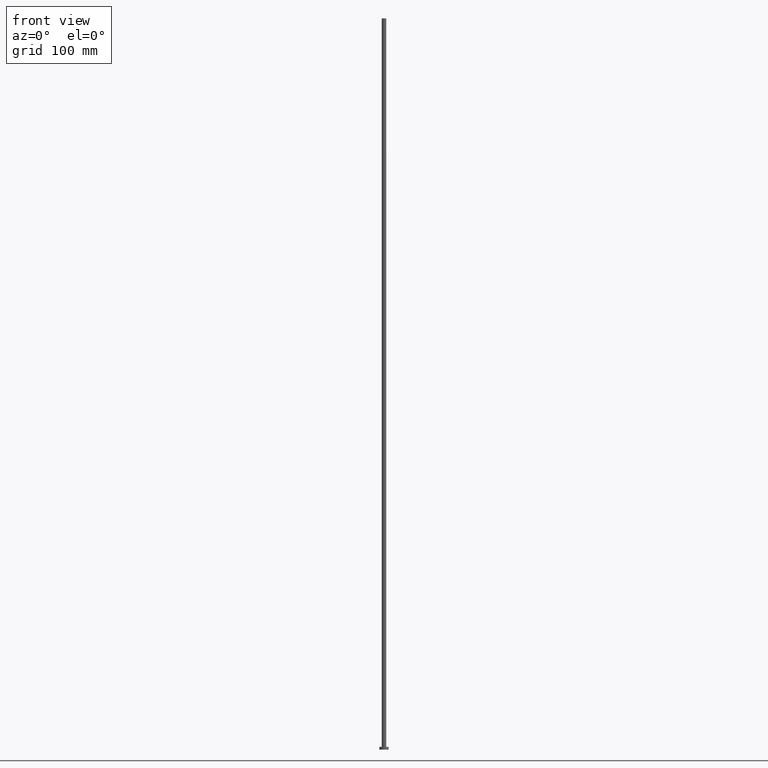
[diagram: clean part render]
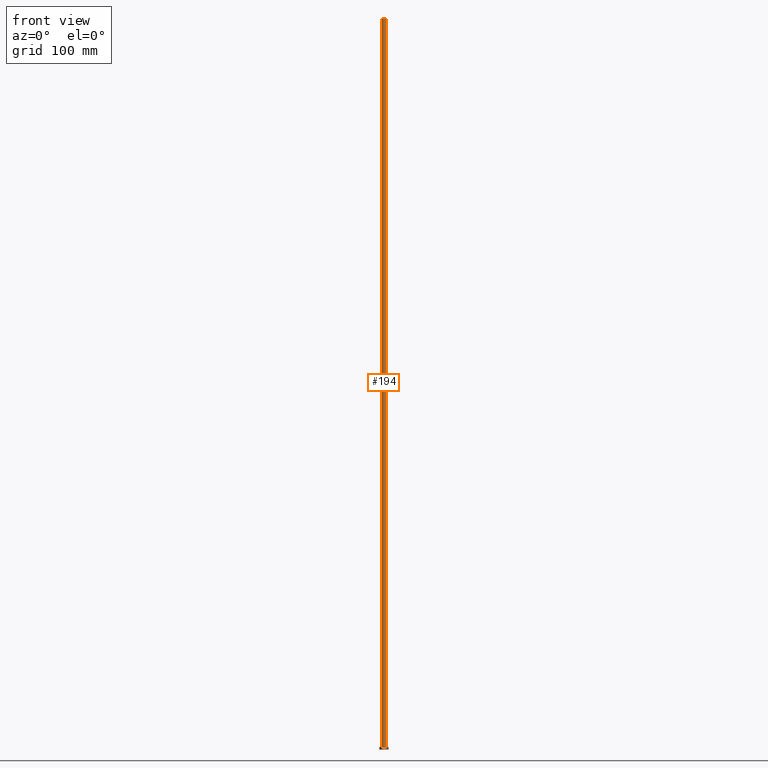
[diagram: same view with one face highlighted and labeled with its STEP entity id]
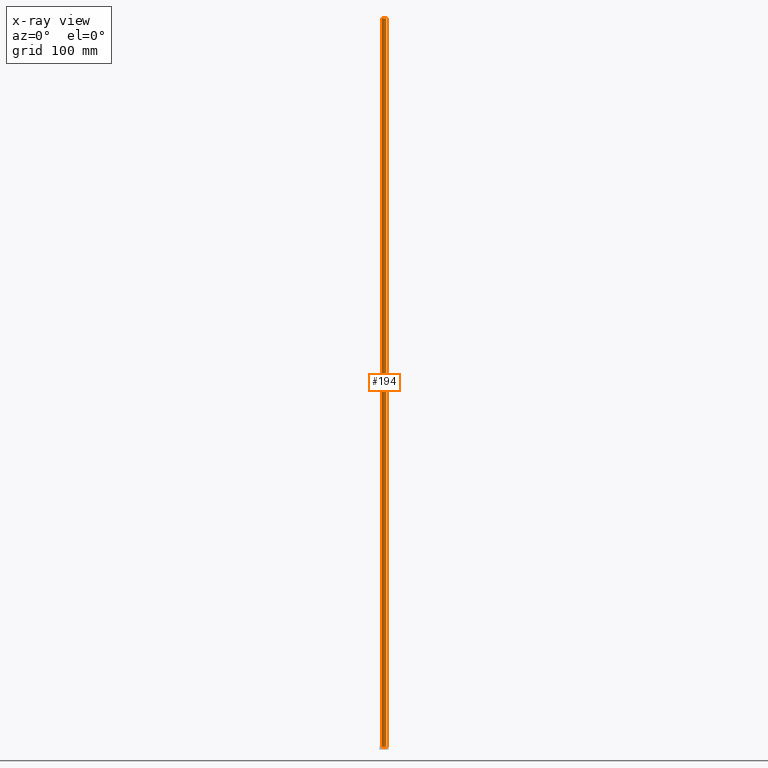
[diagram: x-ray of the same camera — body ghosted, the highlighted face saturated]
A machine part, front view. The second image highlights one B-rep face of the part: STEP entity #194.
The next image is the same camera in x-ray: the body ghosted, the highlighted face saturated — about 0% of this face is hidden behind the body in this view.
In plain terms, the highlighted cylindrical surface (edge-blend (fillet) strip) has radius 2.5 mm, axis along (-0, -0, -1).
Its self-contained STEP definition (entity closure, byte-faithful):
#2 = AXIS2_PLACEMENT_3D ( 'NONE', #191, #85, #42 ) ;
#26 = CARTESIAN_POINT ( 'NONE',  ( 0.000000000000000000, 0.000000000000000000, 800.0000000000000000 ) ) ;
#35 = VERTEX_POINT ( 'NONE', #105 ) ;
#38 = ORIENTED_EDGE ( 'NONE', *, *, #49, .F. ) ;
#39 = CARTESIAN_POINT ( 'NONE',  ( 0.000000000000000000, 0.000000000000000000, 800.0000000000000000 ) ) ;
#42 = DIRECTION ( 'NONE',  ( 1.000000000000000000, 0.000000000000000000, 0.000000000000000000 ) ) ;
#47 = AXIS2_PLACEMENT_3D ( 'NONE', #39, #128, #173 ) ;
#49 = EDGE_CURVE ( 'NONE', #35, #239, #101, .T. ) ;
#59 = DIRECTION ( 'NONE',  ( -0.000000000000000000, -0.000000000000000000, -1.000000000000000000 ) ) ;
#60 = DIRECTION ( 'NONE',  ( -0.000000000000000000, -0.000000000000000000, -1.000000000000000000 ) ) ;
#82 = CYLINDRICAL_SURFACE ( 'NONE', #216, 2.500000000000000000 ) ;
#85 = DIRECTION ( 'NONE',  ( 0.000000000000000000, 0.000000000000000000, 1.000000000000000000 ) ) ;
#97 = EDGE_LOOP ( 'NONE', ( #38, #164, #230, #145 ) ) ;
#99 = VERTEX_POINT ( 'NONE', #131 ) ;
#101 = LINE ( 'NONE', #242, #104 ) ;
#102 = LINE ( 'NONE', #133, #178 ) ;
#104 = VECTOR ( 'NONE', #60, 1000.000000000000000 ) ;
#105 = CARTESIAN_POINT ( 'NONE',  ( 2.500000000000000000, 3.061616997868383141E-16, 800.0000000000000000 ) ) ;
#115 = FACE_OUTER_BOUND ( 'NONE', #97, .T. ) ;
#126 = VERTEX_POINT ( 'NONE', #146 ) ;
#127 = DIRECTION ( 'NONE',  ( -1.000000000000000000, 0.000000000000000000, 0.000000000000000000 ) ) ;
#128 = DIRECTION ( 'NONE',  ( 0.000000000000000000, 0.000000000000000000, 1.000000000000000000 ) ) ;
#131 = CARTESIAN_POINT ( 'NONE',  ( -2.500000000000000000, 0.000000000000000000, 3.000000000000000000 ) ) ;
#133 = CARTESIAN_POINT ( 'NONE',  ( -2.500000000000000000, 0.000000000000000000, 800.0000000000000000 ) ) ;
#142 = EDGE_CURVE ( 'NONE', #126, #35, #158, .T. ) ;
#145 = ORIENTED_EDGE ( 'NONE', *, *, #170, .T. ) ;
#146 = CARTESIAN_POINT ( 'NONE',  ( -2.500000000000000000, 0.000000000000000000, 800.0000000000000000 ) ) ;
#150 = DIRECTION ( 'NONE',  ( -0.000000000000000000, -0.000000000000000000, -1.000000000000000000 ) ) ;
#158 = CIRCLE ( 'NONE', #47, 2.500000000000000000 ) ;
#164 = ORIENTED_EDGE ( 'NONE', *, *, #142, .F. ) ;
#170 = EDGE_CURVE ( 'NONE', #99, #239, #231, .T. ) ;
#173 = DIRECTION ( 'NONE',  ( 1.000000000000000000, 0.000000000000000000, 0.000000000000000000 ) ) ;
#178 = VECTOR ( 'NONE', #59, 1000.000000000000000 ) ;
#191 = CARTESIAN_POINT ( 'NONE',  ( 0.000000000000000000, 0.000000000000000000, 3.000000000000000000 ) ) ;
#194 = ADVANCED_FACE ( 'NONE', ( #115 ), #82, .T. ) ;
#211 = EDGE_CURVE ( 'NONE', #126, #99, #102, .T. ) ;
#216 = AXIS2_PLACEMENT_3D ( 'NONE', #26, #150, #127 ) ;
#226 = CARTESIAN_POINT ( 'NONE',  ( 2.500000000000000000, 3.061616997868383141E-16, 3.000000000000000000 ) ) ;
#230 = ORIENTED_EDGE ( 'NONE', *, *, #211, .T. ) ;
#231 = CIRCLE ( 'NONE', #2, 2.500000000000000000 ) ;
#239 = VERTEX_POINT ( 'NONE', #226 ) ;
#242 = CARTESIAN_POINT ( 'NONE',  ( 2.500000000000000000, 3.061616997868383141E-16, 800.0000000000000000 ) ) ;